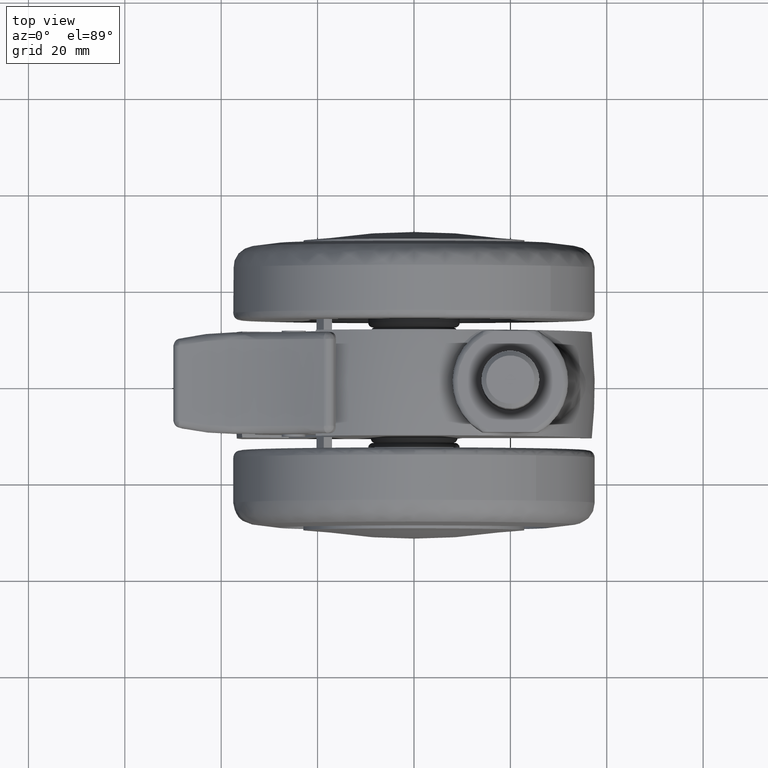
[diagram: clean part render]
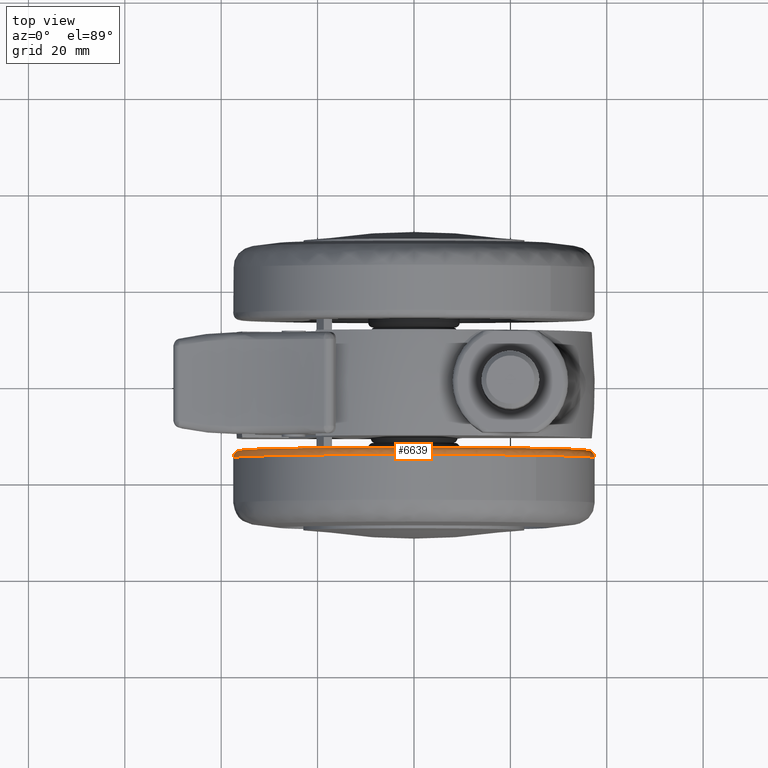
[diagram: same view with one face highlighted and labeled with its STEP entity id]
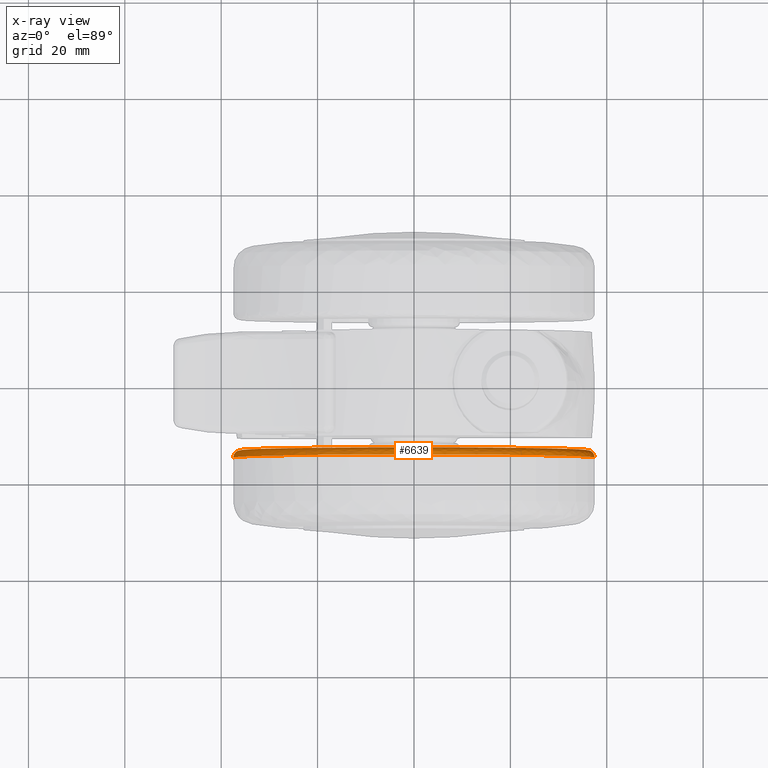
[diagram: x-ray of the same camera — body ghosted, the highlighted face saturated]
A machine part, top view. The second image highlights one B-rep face of the part: STEP entity #6639.
The next image is the same camera in x-ray: the body ghosted, the highlighted face saturated — about 0% of this face is hidden behind the body in this view.
In plain terms, the highlighted face is a freeform B-spline surface patch.
Its self-contained STEP definition (entity closure, byte-faithful):
#5033=CARTESIAN_POINT('',(25.334631932662550,-14.999999998324579,27.647900911939811));
#5034=VERTEX_POINT('',#5033);
#5040=CARTESIAN_POINT('',(0.0,-15.0,37.500000000000000));
#5041=VERTEX_POINT('',#5040);
#5042=CARTESIAN_POINT('',(0.0,-15.0,37.500000000000000));
#5043=CARTESIAN_POINT('',(14.582951778584068,-15.0,37.499999999999986));
#5044=CARTESIAN_POINT('',(25.334631932662546,-14.999999998324586,27.647900911939811));
#5052=(BOUNDED_CURVE()B_SPLINE_CURVE(2,(#5042,#5043,#5044),.UNSPECIFIED.,.F.,.U.)B_SPLINE_CURVE_WITH_KNOTS((3,3),(0.0,0.118415204427017),.UNSPECIFIED.)CURVE()GEOMETRIC_REPRESENTATION_ITEM()RATIONAL_B_SPLINE_CURVE((1.0,0.861267958475672,0.853959781412790))REPRESENTATION_ITEM(''));
#5053=EDGE_CURVE('',#5041,#5034,#5052,.T.);
#5055=CARTESIAN_POINT('',(-37.488157098123487,-14.999999993783151,-0.942378579134916));
#5056=VERTEX_POINT('',#5055);
#5057=CARTESIAN_POINT('',(-37.488157098123494,-14.999999993783158,-0.942378579134916));
#5058=CARTESIAN_POINT('',(-37.499999999999993,-14.999999999999996,-0.471263704636502));
#5059=CARTESIAN_POINT('',(-37.500000000000000,-15.0,0.0));
#5060=CARTESIAN_POINT('',(-37.500000000000000,-14.999999999999996,37.500000000000000));
#5061=CARTESIAN_POINT('',(0.0,-15.0,37.500000000000000));
#5069=(BOUNDED_CURVE()B_SPLINE_CURVE(2,(#5057,#5058,#5059,#5060,#5061),.UNSPECIFIED.,.F.,.U.)B_SPLINE_CURVE_WITH_KNOTS((3,2,3),(0.745579891769716,0.750000000000000,1.0),.UNSPECIFIED.)CURVE()GEOMETRIC_REPRESENTATION_ITEM()RATIONAL_B_SPLINE_CURVE((0.989826157681370,0.994821521091714,1.0,0.707106781186547,1.0))REPRESENTATION_ITEM(''));
#5070=EDGE_CURVE('',#5056,#5041,#5069,.T.);
#5148=CARTESIAN_POINT('',(37.488157098123487,-14.999999993783151,0.942378579134925));
#5149=VERTEX_POINT('',#5148);
#5165=CARTESIAN_POINT('',(25.334631932662546,-14.999999998324586,27.647900911939811));
#5166=CARTESIAN_POINT('',(37.087558643652258,-14.999999996493152,16.878328447725014));
#5167=CARTESIAN_POINT('',(37.488157098123494,-14.999999993783153,0.942378579134925));
#5175=(BOUNDED_CURVE()B_SPLINE_CURVE(2,(#5165,#5166,#5167),.UNSPECIFIED.,.F.,.U.)B_SPLINE_CURVE_WITH_KNOTS((3,3),(0.118415204427017,0.245579891769716),.UNSPECIFIED.)CURVE()GEOMETRIC_REPRESENTATION_ITEM()RATIONAL_B_SPLINE_CURVE((0.853959781412790,0.846111616510796,0.989826157681370))REPRESENTATION_ITEM(''));
#5176=EDGE_CURVE('',#5034,#5149,#5175,.T.);
#6516=CARTESIAN_POINT('',(-35.988630824293402,-13.500000000000000,-0.904683436412508));
#6517=VERTEX_POINT('',#6516);
#6518=CARTESIAN_POINT('',(-37.488157098123494,-14.999999993783160,-0.942378579134916));
#6519=CARTESIAN_POINT('',(-37.488157085693963,-13.500000020205574,-0.942378578812694));
#6520=CARTESIAN_POINT('',(-35.988630824293402,-13.500000000000002,-0.904683436412508));
#6528=(BOUNDED_CURVE()B_SPLINE_CURVE(2,(#6518,#6519,#6520),.UNSPECIFIED.,.F.,.U.)B_SPLINE_CURVE_WITH_KNOTS((3,3),(-1.723441273450363,-0.263586892869176),.UNSPECIFIED.)CURVE()GEOMETRIC_REPRESENTATION_ITEM()RATIONAL_B_SPLINE_CURVE((0.883897564130760,0.626638731225234,0.888510404060895))REPRESENTATION_ITEM(''));
#6529=EDGE_CURVE('',#5056,#6517,#6528,.T.);
#6546=CARTESIAN_POINT('',(35.988630824293409,-13.500000000000000,0.904683436412513));
#6547=VERTEX_POINT('',#6546);
#6563=CARTESIAN_POINT('',(37.488157098123494,-14.999999993783145,0.942378579134925));
#6564=CARTESIAN_POINT('',(37.488157085693956,-13.500000020205579,0.942378578812697));
#6565=CARTESIAN_POINT('',(35.988630824293402,-13.500000000000000,0.904683436412513));
#6573=(BOUNDED_CURVE()B_SPLINE_CURVE(2,(#6563,#6564,#6565),.UNSPECIFIED.,.F.,.U.)B_SPLINE_CURVE_WITH_KNOTS((3,3),(-1.723441273450362,-0.263586892869184),.UNSPECIFIED.)CURVE()GEOMETRIC_REPRESENTATION_ITEM()RATIONAL_B_SPLINE_CURVE((0.883897564130759,0.626638731225236,0.888510404060893))REPRESENTATION_ITEM(''));
#6574=EDGE_CURVE('',#5149,#6547,#6573,.T.);
#6579=CARTESIAN_POINT('',(-37.484507708172224,-15.104586337698418,-0.942286840635363));
#6580=CARTESIAN_POINT('',(-38.426794548807592,-15.104586337698420,36.542220867536869));
#6581=CARTESIAN_POINT('',(-0.942286840635366,-15.104586337698418,37.484507708172224));
#6582=CARTESIAN_POINT('',(36.542220867536869,-15.104586337698420,38.426794548807607));
#6583=CARTESIAN_POINT('',(37.484507708172224,-15.104586337698418,0.942286840635368));
#6584=CARTESIAN_POINT('',(-37.604729302184516,-13.383994995192797,-0.945308975189722));
#6585=CARTESIAN_POINT('',(-38.550038277374242,-13.383994995192795,36.659420326994791));
#6586=CARTESIAN_POINT('',(-0.945308975189724,-13.383994995192797,37.604729302184516));
#6587=CARTESIAN_POINT('',(36.659420326994791,-13.383994995192795,38.550038277374242));
#6588=CARTESIAN_POINT('',(37.604729302184516,-13.383994995192797,0.945308975189726));
#6589=CARTESIAN_POINT('',(-35.884636533293829,-13.503611562649683,-0.902069224159341));
#6590=CARTESIAN_POINT('',(-36.786705757453170,-13.503611562649683,34.982567309134481));
#6591=CARTESIAN_POINT('',(-0.902069224159343,-13.503611562649683,35.884636533293829));
#6592=CARTESIAN_POINT('',(34.982567309134467,-13.503611562649683,36.786705757453170));
#6593=CARTESIAN_POINT('',(35.884636533293829,-13.503611562649683,0.902069224159345));
#6601=(BOUNDED_SURFACE()B_SPLINE_SURFACE(2,2,((#6579,#6584,#6589),(#6580,#6585,#6590),(#6581,#6586,#6591),(#6582,#6587,#6592),(#6583,#6588,#6593)),.UNSPECIFIED.,.F.,.F.,.U.)B_SPLINE_SURFACE_WITH_KNOTS((3,2,3),(3,3),(0.0,62.125985938559992,124.251971877120000),(0.0,2.733557101182341),.UNSPECIFIED.)GEOMETRIC_REPRESENTATION_ITEM()RATIONAL_B_SPLINE_SURFACE(((0.910892958135503,0.599412749565811,0.915966979117423),(0.644098587632688,0.423848819947659,0.647686462276886),(0.910892958135503,0.599412749565811,0.915966979117423),(0.644098587632688,0.423848819947659,0.647686462276886),(0.910892958135503,0.599412749565811,0.915966979117423)))REPRESENTATION_ITEM('')SURFACE());
#6602=ORIENTED_EDGE('',*,*,#5053,.T.);
#6603=ORIENTED_EDGE('',*,*,#5176,.T.);
#6604=ORIENTED_EDGE('',*,*,#6574,.T.);
#6605=CARTESIAN_POINT('',(0.0,-13.500000000000000,36.0));
#6606=VERTEX_POINT('',#6605);
#6607=CARTESIAN_POINT('',(0.0,-13.500000000000000,36.0));
#6608=CARTESIAN_POINT('',(35.106403542116020,-13.500000000000002,36.000000000000007));
#6609=CARTESIAN_POINT('',(35.988630824293416,-13.500000000000004,0.904683436412513));
#6617=(BOUNDED_CURVE()B_SPLINE_CURVE(2,(#6607,#6608,#6609),.UNSPECIFIED.,.F.,.U.)B_SPLINE_CURVE_WITH_KNOTS((3,3),(0.0,0.245579891767878),.UNSPECIFIED.)CURVE()GEOMETRIC_REPRESENTATION_ITEM()RATIONAL_B_SPLINE_CURVE((1.0,0.712285260096988,0.989826157677214))REPRESENTATION_ITEM(''));
#6618=EDGE_CURVE('',#6606,#6547,#6617,.T.);
#6619=ORIENTED_EDGE('',*,*,#6618,.F.);
#6620=CARTESIAN_POINT('',(-35.988630824293402,-13.500000000000004,-0.904683436412508));
#6621=CARTESIAN_POINT('',(-36.0,-13.500000000000000,-0.452413156640235));
#6622=CARTESIAN_POINT('',(-36.0,-13.500000000000000,0.0));
#6623=CARTESIAN_POINT('',(-36.0,-13.500000000000000,36.0));
#6624=CARTESIAN_POINT('',(0.0,-13.500000000000000,36.0));
#6632=(BOUNDED_CURVE()B_SPLINE_CURVE(2,(#6620,#6621,#6622,#6623,#6624),.UNSPECIFIED.,.F.,.U.)B_SPLINE_CURVE_WITH_KNOTS((3,2,3),(0.745579891767878,0.750000000000000,1.0),.UNSPECIFIED.)CURVE()GEOMETRIC_REPRESENTATION_ITEM()RATIONAL_B_SPLINE_CURVE((0.989826157677214,0.994821521089559,1.0,0.707106781186547,1.0))REPRESENTATION_ITEM(''));
#6633=EDGE_CURVE('',#6517,#6606,#6632,.T.);
#6634=ORIENTED_EDGE('',*,*,#6633,.F.);
#6635=ORIENTED_EDGE('',*,*,#6529,.F.);
#6636=ORIENTED_EDGE('',*,*,#5070,.T.);
#6637=EDGE_LOOP('',(#6602,#6603,#6604,#6619,#6634,#6635,#6636));
#6638=FACE_OUTER_BOUND('',#6637,.T.);
#6639=ADVANCED_FACE('',(#6638),#6601,.T.);